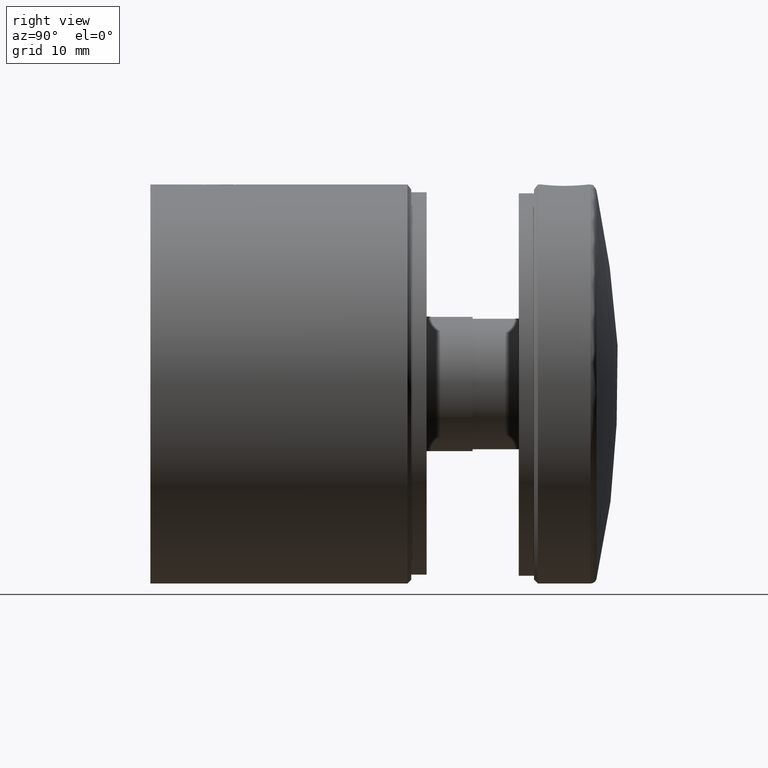
[diagram: clean part render]
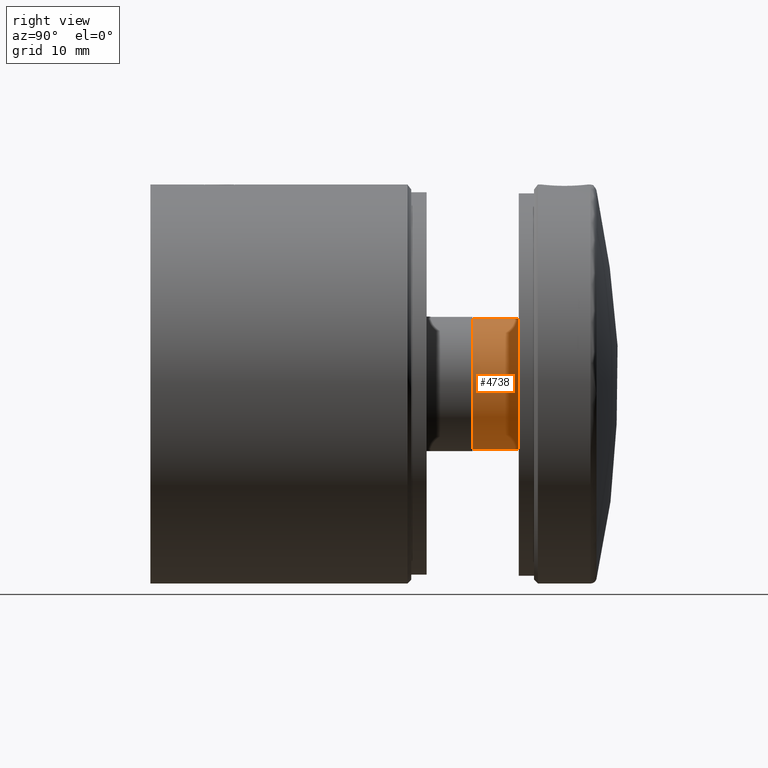
[diagram: same view with one face highlighted and labeled with its STEP entity id]
A machine part, right view. The second image highlights one B-rep face of the part: STEP entity #4738.
In plain terms, the highlighted cylindrical surface (bore or boss wall) has radius 8.5 mm, axis along (0, 1, -0).
Its self-contained STEP definition (entity closure, byte-faithful):
#2 = FACE_OUTER_BOUND ( 'NONE', #11200, .T. ) ;
#2302 = EDGE_CURVE ( 'NONE', #16060, #16060, #10784, .T. ) ;
#2470 = DIRECTION ( 'NONE',  ( -0.0000000000000000000, -1.000000000000000000, -0.0000000000000000000 ) ) ;
#2937 = AXIS2_PLACEMENT_3D ( 'NONE', #6998, #16574, #13308 ) ;
#4326 = CARTESIAN_POINT ( 'NONE',  ( 0.0000000000000000000, 2.000000000000000000, -8.499999999999998200 ) ) ;
#4512 = CARTESIAN_POINT ( 'NONE',  ( 0.0000000000000000000, 2.000000000000000000, 0.0000000000000000000 ) ) ;
#4738 = ADVANCED_FACE ( 'NONE', ( #2, #7978 ), #18223, .T. ) ;
#4877 = AXIS2_PLACEMENT_3D ( 'NONE', #4512, #15541, #6251 ) ;
#5829 = DIRECTION ( 'NONE',  ( 0.0000000000000000000, 0.0000000000000000000, -1.000000000000000000 ) ) ;
#6251 = DIRECTION ( 'NONE',  ( 0.0000000000000000000, 0.0000000000000000000, -1.000000000000000000 ) ) ;
#6347 = CARTESIAN_POINT ( 'NONE',  ( 0.0000000000000000000, 8.000000000000000000, -8.500000000000000000 ) ) ;
#6626 = EDGE_CURVE ( 'NONE', #9073, #9073, #18377, .T. ) ;
#6998 = CARTESIAN_POINT ( 'NONE',  ( 0.0000000000000000000, 0.0000000000000000000, 0.0000000000000000000 ) ) ;
#7978 = FACE_OUTER_BOUND ( 'NONE', #18012, .T. ) ;
#8638 = ORIENTED_EDGE ( 'NONE', *, *, #2302, .F. ) ;
#9073 = VERTEX_POINT ( 'NONE', #6347 ) ;
#10518 = ORIENTED_EDGE ( 'NONE', *, *, #6626, .T. ) ;
#10784 = CIRCLE ( 'NONE', #4877, 8.499999999999998200 ) ;
#11200 = EDGE_LOOP ( 'NONE', ( #10518 ) ) ;
#13308 = DIRECTION ( 'NONE',  ( 0.0000000000000000000, 0.0000000000000000000, -1.000000000000000000 ) ) ;
#15541 = DIRECTION ( 'NONE',  ( -0.0000000000000000000, -1.000000000000000000, -0.0000000000000000000 ) ) ;
#15676 = AXIS2_PLACEMENT_3D ( 'NONE', #18698, #2470, #5829 ) ;
#16060 = VERTEX_POINT ( 'NONE', #4326 ) ;
#16574 = DIRECTION ( 'NONE',  ( -0.0000000000000000000, -1.000000000000000000, -0.0000000000000000000 ) ) ;
#18012 = EDGE_LOOP ( 'NONE', ( #8638 ) ) ;
#18223 = CYLINDRICAL_SURFACE ( 'NONE', #2937, 8.500000000000000000 ) ;
#18377 = CIRCLE ( 'NONE', #15676, 8.500000000000000000 ) ;
#18698 = CARTESIAN_POINT ( 'NONE',  ( 0.0000000000000000000, 8.000000000000000000, 0.0000000000000000000 ) ) ;